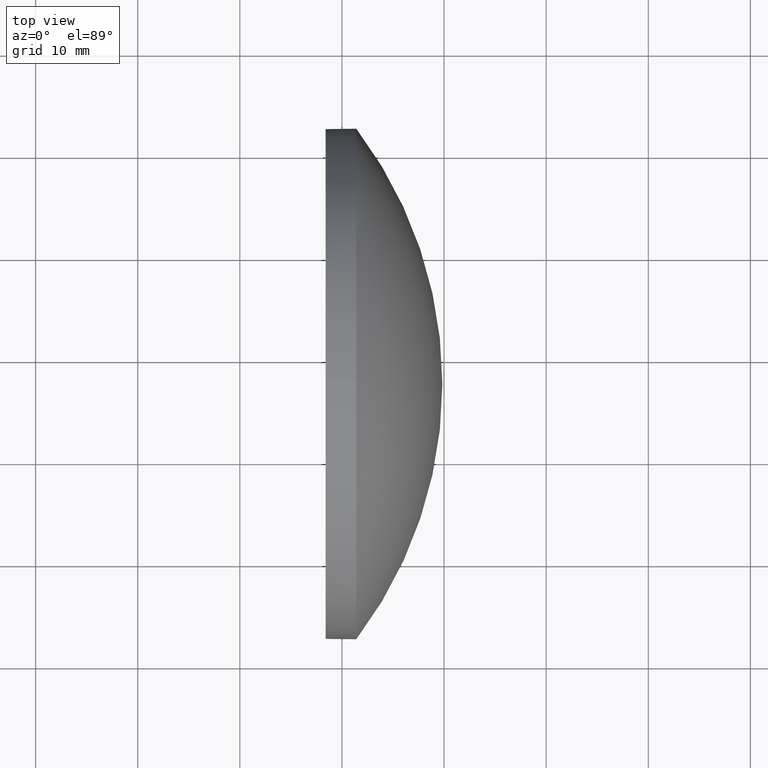
[diagram: clean part render]
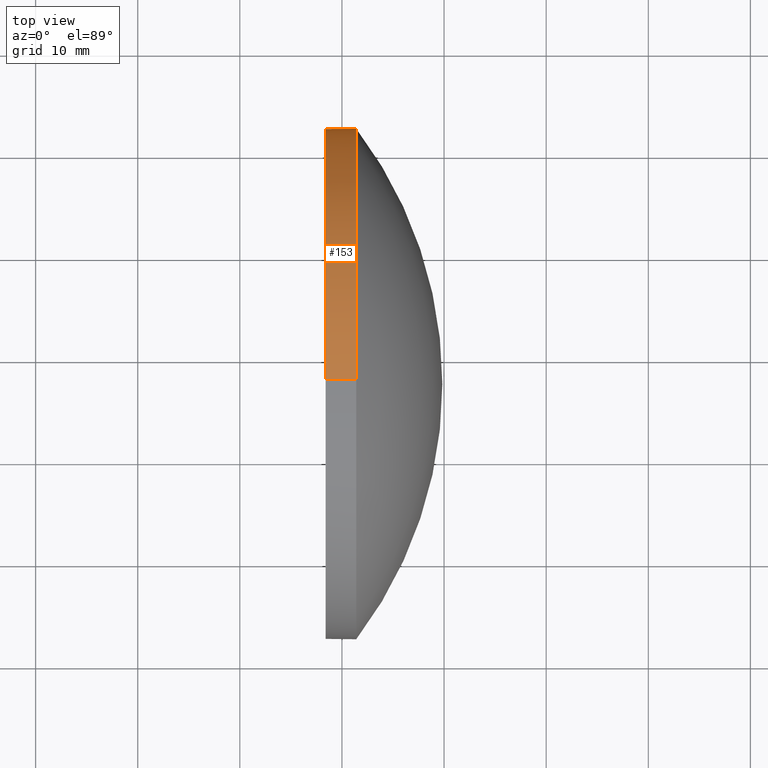
[diagram: same view with one face highlighted and labeled with its STEP entity id]
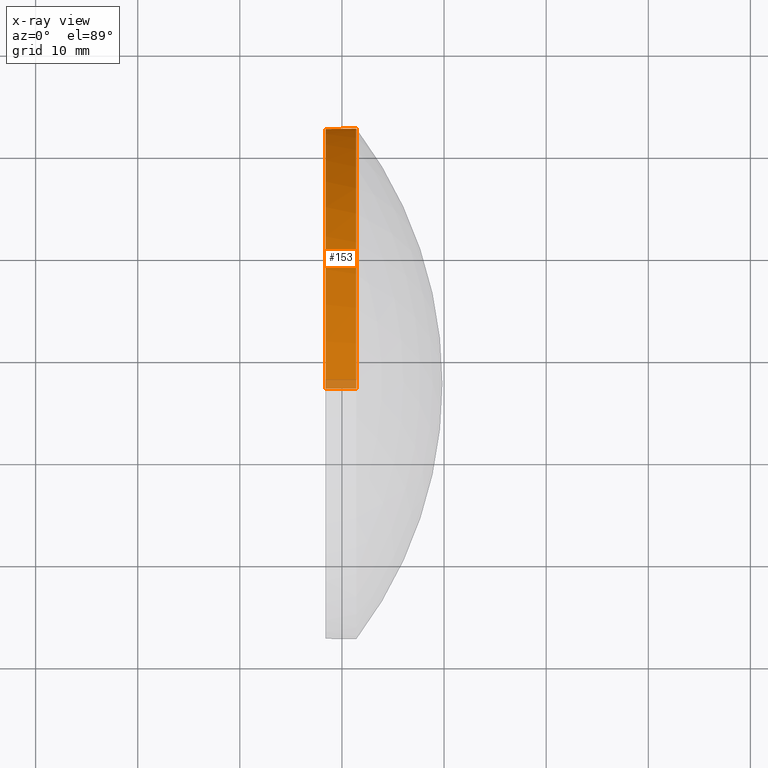
[diagram: x-ray of the same camera — body ghosted, the highlighted face saturated]
A machine part, top view. The second image highlights one B-rep face of the part: STEP entity #153.
The next image is the same camera in x-ray: the body ghosted, the highlighted face saturated — about 3% of this face is hidden behind the body in this view.
In plain terms, the highlighted cylindrical surface (partial cylindrical patch) has radius 25 mm, axis along (-1, -0, -0).
Its self-contained STEP definition (entity closure, byte-faithful):
#6 = EDGE_CURVE ( 'NONE', #173, #75, #135, .T. ) ;
#7 = VERTEX_POINT ( 'NONE', #118 ) ;
#9 = DIRECTION ( 'NONE',  ( 0.0000000000000000000, 0.0000000000000000000, 1.000000000000000000 ) ) ;
#12 = CARTESIAN_POINT ( 'NONE',  ( 444.4311937674011100, 47.44710200765325700, 24.99999999999999300 ) ) ;
#14 = CARTESIAN_POINT ( 'NONE',  ( 451.4029690565171200, 72.44710200765327100, 3.061616997868382600E-015 ) ) ;
#15 = VECTOR ( 'NONE', #55, 1000.000000000000000 ) ;
#24 = DIRECTION ( 'NONE',  ( 0.0000000000000000000, 0.0000000000000000000, 1.000000000000000000 ) ) ;
#25 = ORIENTED_EDGE ( 'NONE', *, *, #186, .T. ) ;
#27 = DIRECTION ( 'NONE',  ( -1.000000000000000000, -0.0000000000000000000, -0.0000000000000000000 ) ) ;
#29 = FACE_OUTER_BOUND ( 'NONE', #77, .T. ) ;
#30 = CARTESIAN_POINT ( 'NONE',  ( 448.4029690565171200, 47.44710200765325700, 24.99999999999999300 ) ) ;
#31 = CARTESIAN_POINT ( 'NONE',  ( 451.4029690565171200, 47.44710200765325700, -24.99999999999999300 ) ) ;
#33 = AXIS2_PLACEMENT_3D ( 'NONE', #100, #67, #9 ) ;
#42 = AXIS2_PLACEMENT_3D ( 'NONE', #161, #78, #24 ) ;
#43 = CARTESIAN_POINT ( 'NONE',  ( 448.4029690565171200, 47.44710200765325700, 0.0000000000000000000 ) ) ;
#44 = DIRECTION ( 'NONE',  ( 0.0000000000000000000, 0.0000000000000000000, 1.000000000000000000 ) ) ;
#45 = CIRCLE ( 'NONE', #51, 24.99999999999999300 ) ;
#48 = EDGE_CURVE ( 'NONE', #7, #173, #149, .T. ) ;
#51 = AXIS2_PLACEMENT_3D ( 'NONE', #43, #145, #44 ) ;
#55 = DIRECTION ( 'NONE',  ( -1.000000000000000000, -0.0000000000000000000, -0.0000000000000000000 ) ) ;
#56 = EDGE_CURVE ( 'NONE', #178, #65, #45, .T. ) ;
#58 = DIRECTION ( 'NONE',  ( 0.0000000000000000000, 0.0000000000000000000, 1.000000000000000000 ) ) ;
#65 = VERTEX_POINT ( 'NONE', #109 ) ;
#67 = DIRECTION ( 'NONE',  ( -1.000000000000000000, -0.0000000000000000000, -0.0000000000000000000 ) ) ;
#75 = VERTEX_POINT ( 'NONE', #31 ) ;
#77 = EDGE_LOOP ( 'NONE', ( #97, #25, #102, #115, #91 ) ) ;
#78 = DIRECTION ( 'NONE',  ( -1.000000000000000000, -0.0000000000000000000, -0.0000000000000000000 ) ) ;
#80 = EDGE_CURVE ( 'NONE', #7, #178, #117, .T. ) ;
#86 = CARTESIAN_POINT ( 'NONE',  ( 444.4311937674011100, 47.44710200765325700, 0.0000000000000000000 ) ) ;
#91 = ORIENTED_EDGE ( 'NONE', *, *, #48, .T. ) ;
#97 = ORIENTED_EDGE ( 'NONE', *, *, #6, .T. ) ;
#100 = CARTESIAN_POINT ( 'NONE',  ( 451.4029690565171200, 47.44710200765325700, 0.0000000000000000000 ) ) ;
#102 = ORIENTED_EDGE ( 'NONE', *, *, #56, .F. ) ;
#108 = CARTESIAN_POINT ( 'NONE',  ( 444.4311937674011100, 47.44710200765325700, -24.99999999999999300 ) ) ;
#109 = CARTESIAN_POINT ( 'NONE',  ( 448.4029690565171200, 47.44710200765325700, -24.99999999999999300 ) ) ;
#115 = ORIENTED_EDGE ( 'NONE', *, *, #80, .F. ) ;
#117 = LINE ( 'NONE', #12, #181 ) ;
#118 = CARTESIAN_POINT ( 'NONE',  ( 451.4029690565171200, 47.44710200765325700, 24.99999999999999300 ) ) ;
#122 = AXIS2_PLACEMENT_3D ( 'NONE', #86, #183, #58 ) ;
#135 = CIRCLE ( 'NONE', #33, 24.99999999999999300 ) ;
#145 = DIRECTION ( 'NONE',  ( -1.000000000000000000, -0.0000000000000000000, -0.0000000000000000000 ) ) ;
#149 = CIRCLE ( 'NONE', #42, 24.99999999999999300 ) ;
#153 = ADVANCED_FACE ( 'NONE', ( #29 ), #175, .T. ) ;
#161 = CARTESIAN_POINT ( 'NONE',  ( 451.4029690565171200, 47.44710200765325700, 0.0000000000000000000 ) ) ;
#168 = LINE ( 'NONE', #108, #15 ) ;
#173 = VERTEX_POINT ( 'NONE', #14 ) ;
#175 = CYLINDRICAL_SURFACE ( 'NONE', #122, 24.99999999999999300 ) ;
#178 = VERTEX_POINT ( 'NONE', #30 ) ;
#181 = VECTOR ( 'NONE', #27, 1000.000000000000000 ) ;
#183 = DIRECTION ( 'NONE',  ( -1.000000000000000000, -0.0000000000000000000, -0.0000000000000000000 ) ) ;
#186 = EDGE_CURVE ( 'NONE', #75, #65, #168, .T. ) ;